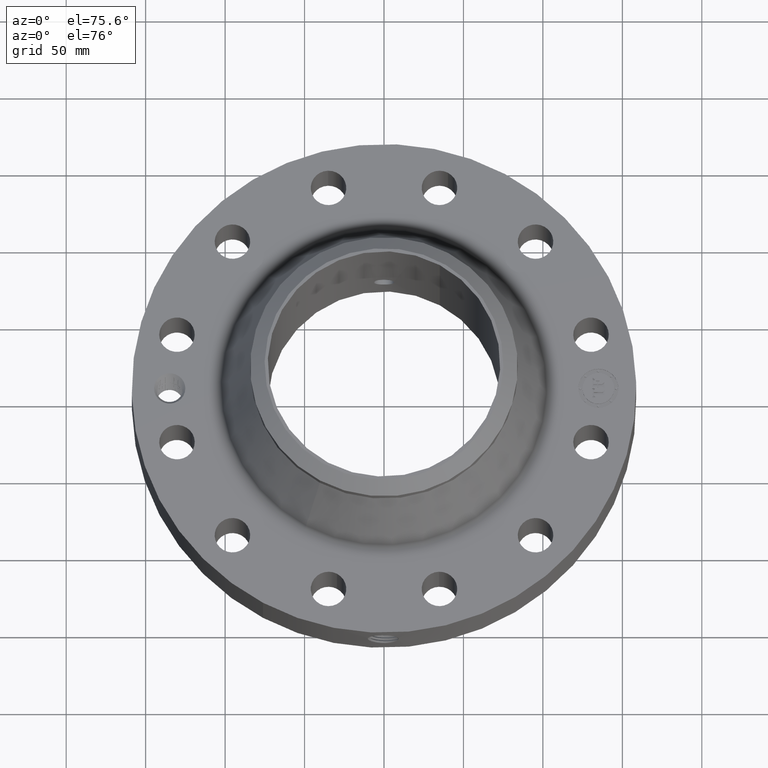
[diagram: clean part render]
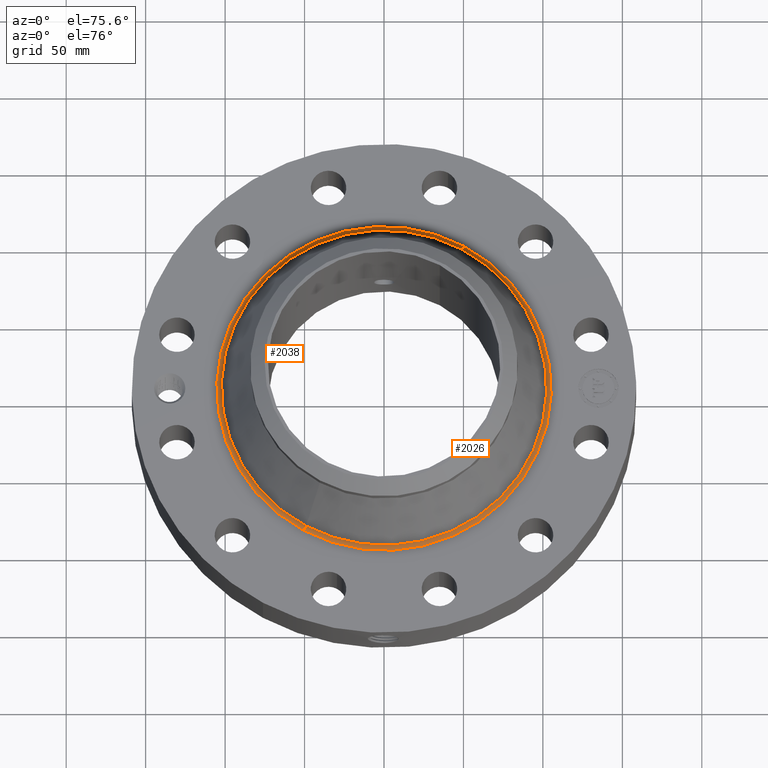
[diagram: same view with one multi-face feature highlighted, each face labeled with its STEP entity id]
A machine part, auxiliary view. The highlighted faces form ONE feature: a constant-radius fillet chain: 2 tangent blend faces with common blend radius 3.048 mm. The faces share edges in the B-rep.
Their STEP definitions:
[1] entity #2026 (Torus):
#582=AXIS2_PLACEMENT_3D('Circle Axis2P3D',#580,#581,$) ;
#1999=AXIS2_PLACEMENT_3D('Torus Axis2P3D',#1996,#1997,#1998) ;
#2003=AXIS2_PLACEMENT_3D('Circle Axis2P3D',#2001,#2002,$) ;
#2010=AXIS2_PLACEMENT_3D('Circle Axis2P3D',#2008,#2009,$) ;
#2017=AXIS2_PLACEMENT_3D('Circle Axis2P3D',#2015,#2016,$) ;
#575=CARTESIAN_POINT('Vertex',(-1.98593442529,-3.63522858162,1.56000000001)) ;
#577=CARTESIAN_POINT('Vertex',(1.98593442529,3.63522858162,1.56000000001)) ;
#580=CARTESIAN_POINT('Axis2P3D Location',(0.,0.,1.56000000001)) ;
#1996=CARTESIAN_POINT('Axis2P3D Location',(0.,0.,1.68000000001)) ;
#2001=CARTESIAN_POINT('Axis2P3D Location',(1.98593442529,3.63522858162,1.68000000001)) ;
#2005=CARTESIAN_POINT('Vertex',(1.93226031698,3.53697878539,1.63680199496)) ;
#2008=CARTESIAN_POINT('Axis2P3D Location',(0.,0.,1.63680199496)) ;
#2012=CARTESIAN_POINT('Vertex',(-1.93226031698,-3.53697878539,1.63680199496)) ;
#2015=CARTESIAN_POINT('Axis2P3D Location',(-1.98593442529,-3.63522858162,1.68000000001)) ;
#581=DIRECTION('Axis2P3D Direction',(0.,0.,-0.0393700787402)) ;
#1997=DIRECTION('Axis2P3D Direction',(0.,0.,-0.0393700787402)) ;
#1998=DIRECTION('Axis2P3D XDirection',(-0.0188750212049,-0.0345504945626,0.)) ;
#2002=DIRECTION('Axis2P3D Direction',(-0.0345504945626,0.0188750212049,0.)) ;
#2009=DIRECTION('Axis2P3D Direction',(0.,0.,-0.0393700787402)) ;
#2016=DIRECTION('Axis2P3D Direction',(0.0345504945626,-0.0188750212049,0.)) ;
#2021=ORIENTED_EDGE('',*,*,#584,.F.) ;
#2022=ORIENTED_EDGE('',*,*,#2007,.T.) ;
#2023=ORIENTED_EDGE('',*,*,#2014,.T.) ;
#2024=ORIENTED_EDGE('',*,*,#2019,.F.) ;
#2026=ADVANCED_FACE('PartBody',(#2025),#2000,.F.) ;
#583=CIRCLE('generated circle',#582,4.14232089319) ;
#2004=CIRCLE('generated circle',#2003,0.12) ;
#2011=CIRCLE('generated circle',#2010,4.03036584703) ;
#2018=CIRCLE('generated circle',#2017,0.12) ;
#2000=TOROIDAL_SURFACE('homeo Torus',#1999,4.14232089319,0.12) ;
#584=EDGE_CURVE('',#578,#576,#583,.T.) ;
#2007=EDGE_CURVE('',#578,#2006,#2004,.T.) ;
#2014=EDGE_CURVE('',#2006,#2013,#2011,.T.) ;
#2019=EDGE_CURVE('',#576,#2013,#2018,.T.) ;
#2020=EDGE_LOOP('',(#2021,#2022,#2023,#2024)) ;
#2025=FACE_OUTER_BOUND('',#2020,.T.) ;
#576=VERTEX_POINT('',#575) ;
#578=VERTEX_POINT('',#577) ;
#2006=VERTEX_POINT('',#2005) ;
#2013=VERTEX_POINT('',#2012) ;
[2] entity #2038 (Torus):
#573=AXIS2_PLACEMENT_3D('Circle Axis2P3D',#571,#572,$) ;
#1999=AXIS2_PLACEMENT_3D('Torus Axis2P3D',#1996,#1997,#1998) ;
#2003=AXIS2_PLACEMENT_3D('Circle Axis2P3D',#2001,#2002,$) ;
#2017=AXIS2_PLACEMENT_3D('Circle Axis2P3D',#2015,#2016,$) ;
#2029=AXIS2_PLACEMENT_3D('Circle Axis2P3D',#2027,#2028,$) ;
#571=CARTESIAN_POINT('Axis2P3D Location',(0.,0.,1.56000000001)) ;
#575=CARTESIAN_POINT('Vertex',(-1.98593442529,-3.63522858162,1.56000000001)) ;
#577=CARTESIAN_POINT('Vertex',(1.98593442529,3.63522858162,1.56000000001)) ;
#1996=CARTESIAN_POINT('Axis2P3D Location',(0.,0.,1.68000000001)) ;
#2001=CARTESIAN_POINT('Axis2P3D Location',(1.98593442529,3.63522858162,1.68000000001)) ;
#2005=CARTESIAN_POINT('Vertex',(1.93226031698,3.53697878539,1.63680199496)) ;
#2012=CARTESIAN_POINT('Vertex',(-1.93226031698,-3.53697878539,1.63680199496)) ;
#2015=CARTESIAN_POINT('Axis2P3D Location',(-1.98593442529,-3.63522858162,1.68000000001)) ;
#2027=CARTESIAN_POINT('Axis2P3D Location',(0.,0.,1.63680199496)) ;
#572=DIRECTION('Axis2P3D Direction',(0.,0.,-0.0393700787402)) ;
#1997=DIRECTION('Axis2P3D Direction',(0.,0.,-0.0393700787402)) ;
#1998=DIRECTION('Axis2P3D XDirection',(-0.0188750212049,-0.0345504945626,0.)) ;
#2002=DIRECTION('Axis2P3D Direction',(-0.0345504945626,0.0188750212049,0.)) ;
#2016=DIRECTION('Axis2P3D Direction',(0.0345504945626,-0.0188750212049,0.)) ;
#2028=DIRECTION('Axis2P3D Direction',(0.,0.,-0.0393700787402)) ;
#2033=ORIENTED_EDGE('',*,*,#579,.F.) ;
#2034=ORIENTED_EDGE('',*,*,#2019,.T.) ;
#2035=ORIENTED_EDGE('',*,*,#2031,.T.) ;
#2036=ORIENTED_EDGE('',*,*,#2007,.F.) ;
#2038=ADVANCED_FACE('PartBody',(#2037),#2000,.F.) ;
#574=CIRCLE('generated circle',#573,4.14232089319) ;
#2004=CIRCLE('generated circle',#2003,0.12) ;
#2018=CIRCLE('generated circle',#2017,0.12) ;
#2030=CIRCLE('generated circle',#2029,4.03036584703) ;
#2000=TOROIDAL_SURFACE('homeo Torus',#1999,4.14232089319,0.12) ;
#579=EDGE_CURVE('',#576,#578,#574,.T.) ;
#2007=EDGE_CURVE('',#578,#2006,#2004,.T.) ;
#2019=EDGE_CURVE('',#576,#2013,#2018,.T.) ;
#2031=EDGE_CURVE('',#2013,#2006,#2030,.T.) ;
#2032=EDGE_LOOP('',(#2033,#2034,#2035,#2036)) ;
#2037=FACE_OUTER_BOUND('',#2032,.T.) ;
#576=VERTEX_POINT('',#575) ;
#578=VERTEX_POINT('',#577) ;
#2006=VERTEX_POINT('',#2005) ;
#2013=VERTEX_POINT('',#2012) ;